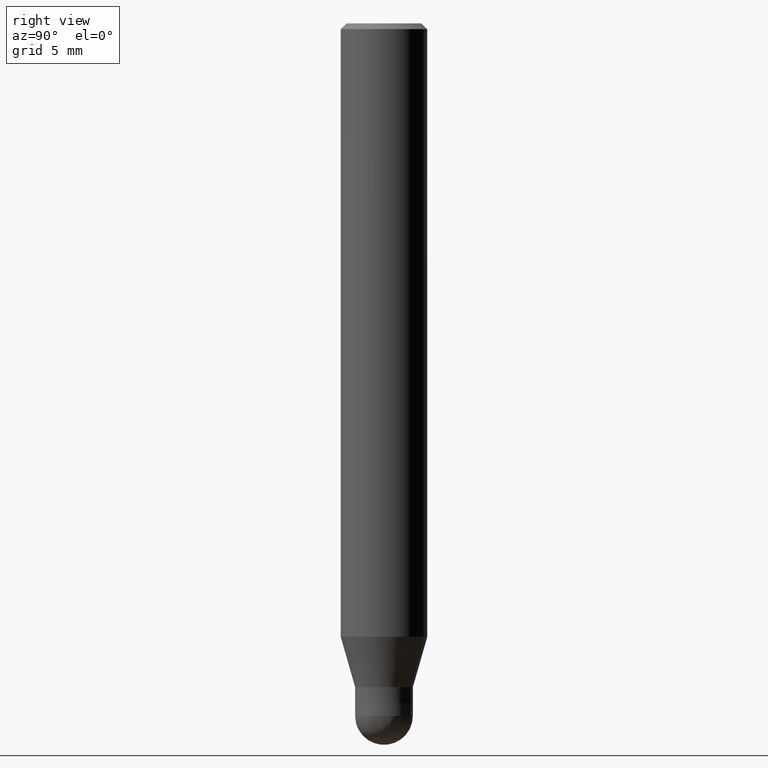
[diagram: clean part render]
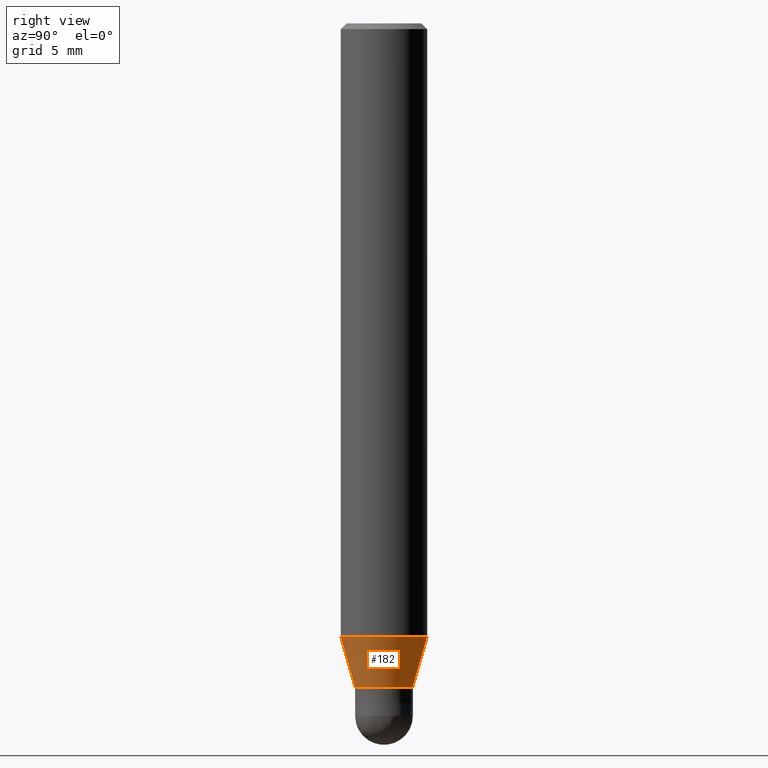
[diagram: same view with one face highlighted and labeled with its STEP entity id]
A machine part, right view. The second image highlights one B-rep face of the part: STEP entity #182.
In plain terms, the highlighted conical surface has half-angle 16.002 deg.
Its self-contained STEP definition (entity closure, byte-faithful):
#90=VERTEX_POINT('',#216);
#118=EDGE_CURVE('',#152,#138,#246,.T.);
#124=EDGE_CURVE('',#136,#152,#254,.T.);
#136=VERTEX_POINT('',#269);
#138=VERTEX_POINT('',#271);
#152=VERTEX_POINT('',#286);
#162=EDGE_CURVE('',#90,#136,#297,.T.);
#170=EDGE_CURVE('',#90,#138,#306,.T.);
#182=ADVANCED_FACE('',(#320),#321,.T.);
#216=CARTESIAN_POINT('',(0.0,2.99995,-42.513));
#246=LINE('',#390,#391);
#254=CIRCLE('',#400,1.99995);
#269=CARTESIAN_POINT('',(0.0,1.99995,-46.0));
#271=CARTESIAN_POINT('',(3.67375783114944E-016,-2.99995,-42.513));
#286=CARTESIAN_POINT('',(2.44915147732706E-016,-1.99995,-46.0));
#297=LINE('',#447,#448);
#306=CIRCLE('',#459,2.99995);
#320=FACE_OUTER_BOUND('',#478,.T.);
#321=CONICAL_SURFACE('',#479,2.49995,0.279284171542493);
#390=CARTESIAN_POINT('',(3.06145465423825E-016,-2.49995,-44.2565));
#391=VECTOR('',#530,1.0);
#400=AXIS2_PLACEMENT_3D('',#539,#540,#541);
#447=CARTESIAN_POINT('',(-3.06145465423825E-016,2.49995,-44.2565));
#448=VECTOR('',#591,1.0);
#459=AXIS2_PLACEMENT_3D('',#603,#604,#605);
#478=EDGE_LOOP('',(#626,#627,#628,#629));
#479=AXIS2_PLACEMENT_3D('',#630,#631,#632);
#530=DIRECTION('',(3.3758432755158E-017,-0.275667626987133,0.961253015304131));
#539=CARTESIAN_POINT('',(0.0,0.0,-46.0));
#540=DIRECTION('',(0.0,0.0,-1.0));
#541=DIRECTION('',(0.0,1.0,0.0));
#591=DIRECTION('',(3.3758432755158E-017,-0.275667626987133,-0.961253015304131));
#603=CARTESIAN_POINT('',(0.0,0.0,-42.513));
#604=DIRECTION('',(0.0,0.0,-1.0));
#605=DIRECTION('',(0.0,1.0,0.0));
#626=ORIENTED_EDGE('',*,*,#162,.F.);
#627=ORIENTED_EDGE('',*,*,#170,.T.);
#628=ORIENTED_EDGE('',*,*,#118,.F.);
#629=ORIENTED_EDGE('',*,*,#124,.F.);
#630=CARTESIAN_POINT('',(0.0,0.0,-44.2565));
#631=DIRECTION('',(-0.0,-0.0,1.0));
#632=DIRECTION('',(0.0,1.0,0.0));